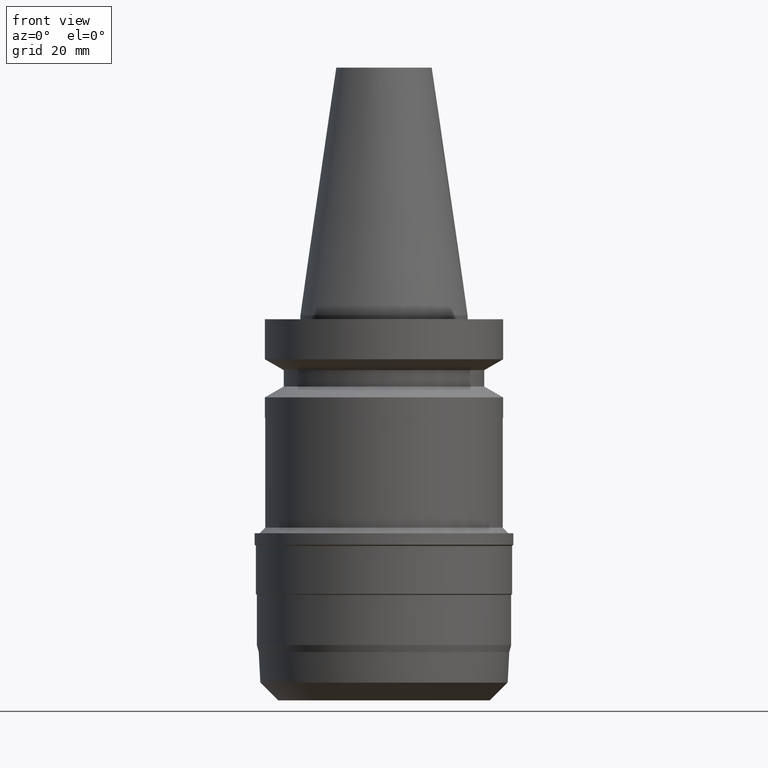
[diagram: clean part render]
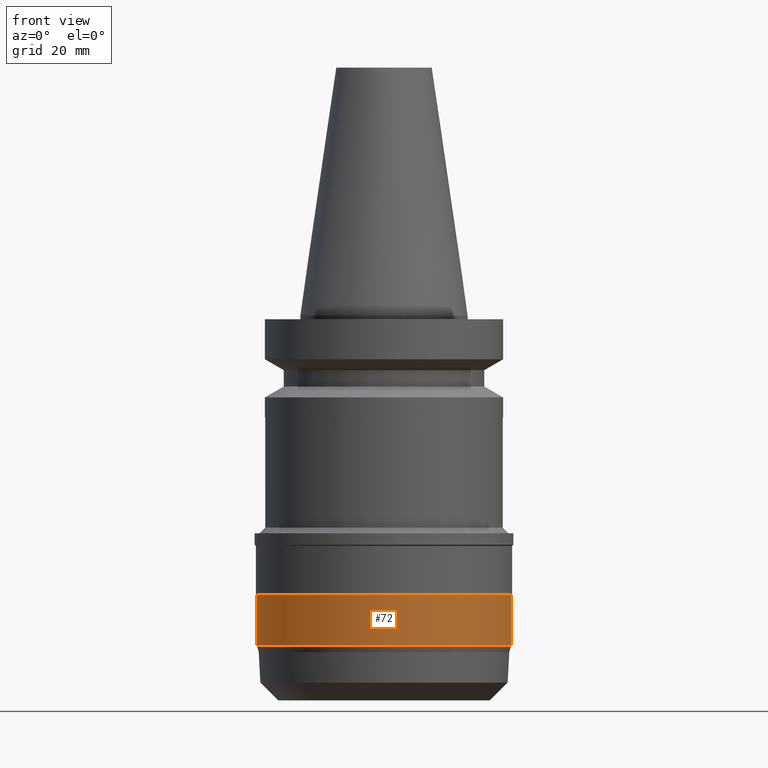
[diagram: same view with one face highlighted and labeled with its STEP entity id]
A machine part, front view. The second image highlights one B-rep face of the part: STEP entity #72.
In plain terms, the highlighted cylindrical surface (bore or boss wall) has radius 33.75 mm, axis along (0, 0, -1).
Its self-contained STEP definition (entity closure, byte-faithful):
#72=ADVANCED_FACE('Unnamed[1]',(#201,#202),#203,.T.);
#114=EDGE_CURVE('Unnamed[1]',#267,#267,#268,.T.);
#145=EDGE_CURVE('Unnamed[1]',#316,#316,#317,.T.);
#201=FACE_BOUND('',#383,.T.);
#202=FACE_BOUND('',#384,.T.);
#203=CYLINDRICAL_SURFACE('',#385,33.75);
#267=VERTEX_POINT('',#465);
#268=CIRCLE('',#466,33.75);
#316=VERTEX_POINT('',#526);
#317=CIRCLE('',#527,33.75);
#383=EDGE_LOOP('',(#599));
#384=EDGE_LOOP('',(#600));
#385=AXIS2_PLACEMENT_3D('',#601,#602,#603);
#465=CARTESIAN_POINT('',(5.32721357629098E-015,33.75,-87.0));
#466=AXIS2_PLACEMENT_3D('',#671,#672,#673);
#526=CARTESIAN_POINT('',(4.51588507185586E-015,33.75,-73.75));
#527=AXIS2_PLACEMENT_3D('',#727,#728,#729);
#599=ORIENTED_EDGE('',*,*,#114,.F.);
#600=ORIENTED_EDGE('',*,*,#145,.T.);
#601=CARTESIAN_POINT('',(4.92154932407342E-015,9.84309864814685E-015,-80.375));
#602=DIRECTION('',(6.12323399573677E-017,1.22464679914729E-016,-1.0));
#603=DIRECTION('',(-1.23259516440783E-032,1.0,1.22464679914729E-016));
#671=CARTESIAN_POINT('',(5.32721357629098E-015,1.0654427152582E-014,-87.0));
#672=DIRECTION('',(6.12323399573677E-017,1.22464679914729E-016,-1.0));
#673=DIRECTION('',(-1.23259516440783E-032,1.0,1.22464679914729E-016));
#727=CARTESIAN_POINT('',(4.51588507185586E-015,9.03177014371173E-015,-73.75));
#728=DIRECTION('',(6.12323399573677E-017,1.22464679914729E-016,-1.0));
#729=DIRECTION('',(-1.23259516440783E-032,1.0,1.22464679914729E-016));